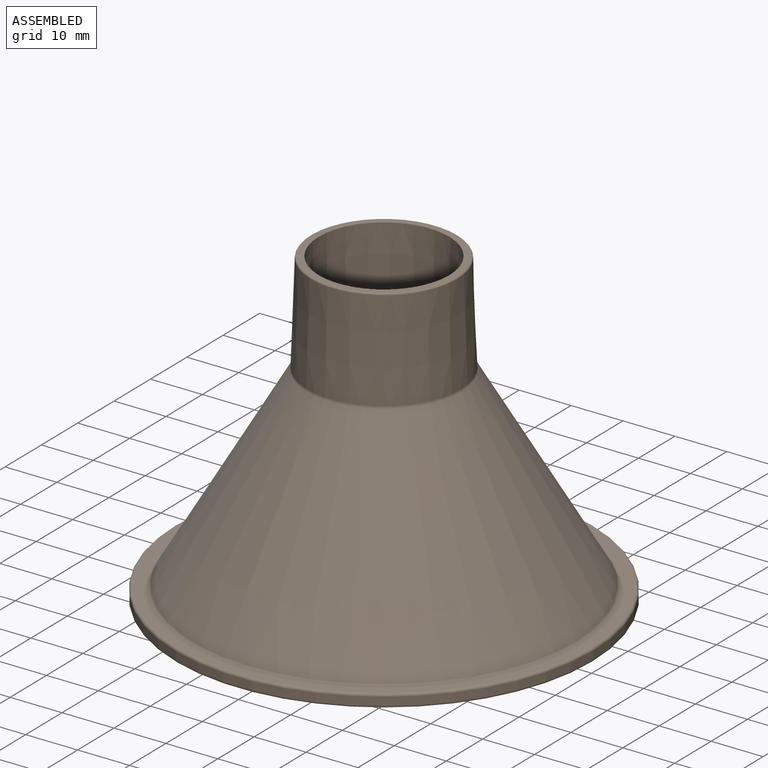
[diagram: assembled view]
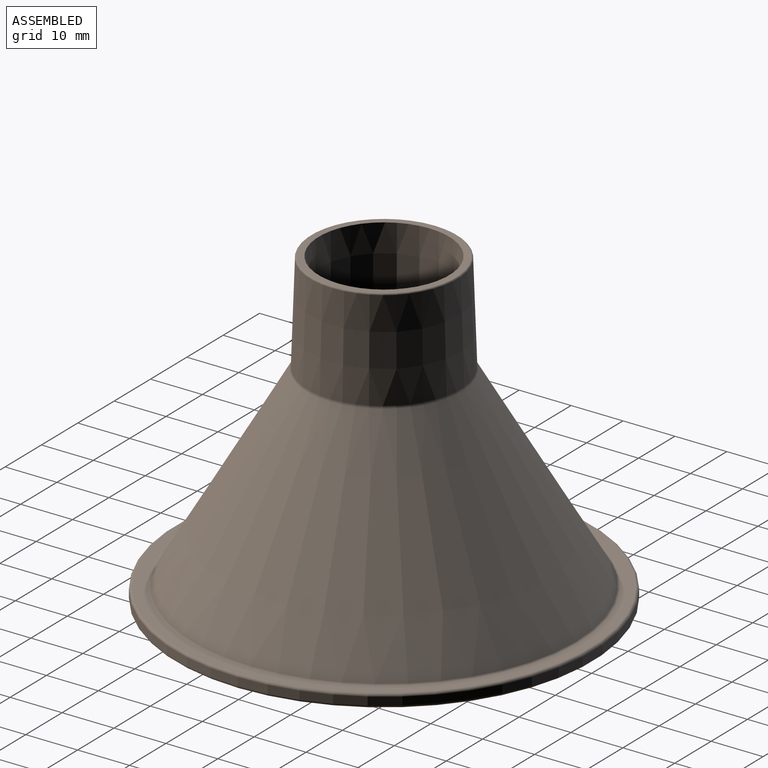
[diagram: assembled view, second angle]
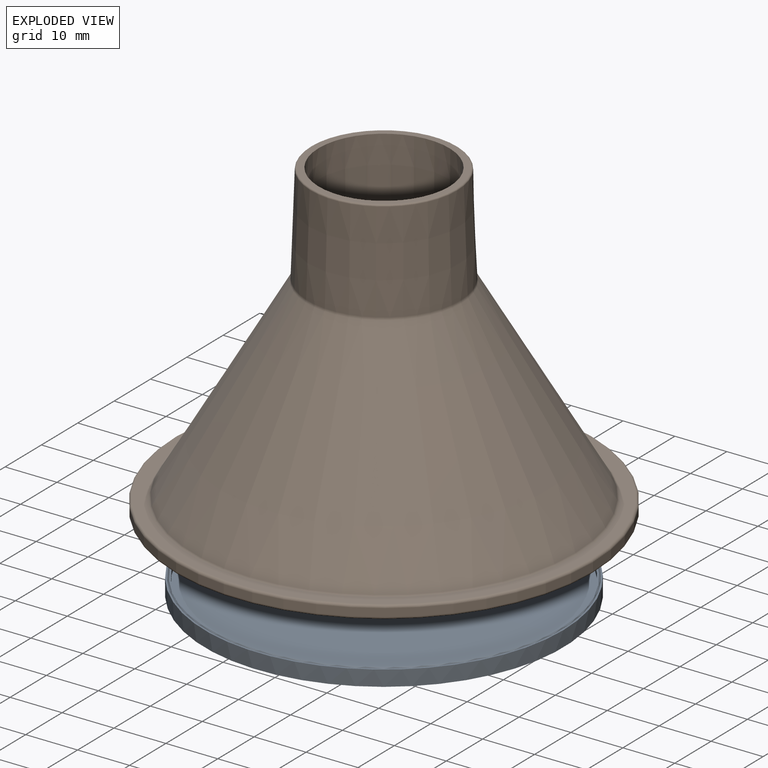
[diagram: exploded view]
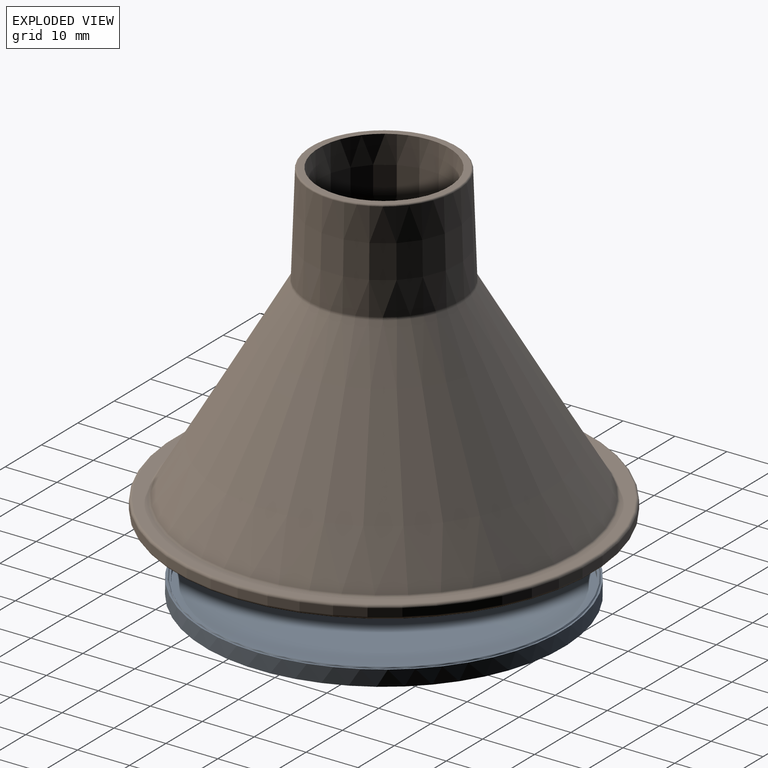
[diagram: exploded view, second angle]
ASSEMBLY  parts=2 mates=2
PART A: 10 faces, bbox 69.1x69.1x3.3 mm
  f0: plane 69.1x69.1mm, normal (0,0,1), area 64.8mm2, adj f2,f9
  f1: plane 67.9x67.9mm, normal (0,0,1), area 63.7mm2, adj f4,f8
  f2: cylinder r=34.55mm len=69.1mm, axis (0,0,-1), area 651.3mm2, adj f0,f3
  f3: plane 69.1x69.1mm, normal (0,0,-1), area 3750.1mm2, adj f2
  f4: cylinder r=33.65mm len=67.3mm, axis (0,0,-1), area 211.4mm2, adj f1,f5
  f5: plane 67.3x67.3mm, normal (0,0,1), area 208.3mm2, adj f4,f6
  f6: cone r=19.82mm half-angle=88.9deg, axis (0,0,1), area 3195.7mm2, adj f5,f7
  f7: plane 14x14mm, normal (0,0,1), area 153.9mm2, adj f6
  f8: cone r=34.02mm half-angle=30deg, axis (0,0,1), area 64.1mm2, adj f1,f9
  f9: cone r=34.17mm half-angle=30deg, axis (0,0,-1), area 64.4mm2, adj f0,f8
PART B: 26 faces, bbox 87.1x87.1x60 mm
  f0: cone r=25.87mm half-angle=30.4deg, axis (0,0,-1), area 7069mm2, adj f1,f25
  f1: torus R=15.74mm, axis (0,0,1), area 46mm2, adj f0,f2
  f2: cone r=14.41mm half-angle=2deg, axis (0,0,-1), area 1717.5mm2, adj f1,f3
  f3: torus R=13.78mm, axis (0,0,1), area 40.4mm2, adj f2,f4
  f4: plane 27.56x27.56mm, normal (0,0,1), area 100.8mm2, adj f3,f5
  f5: cone r=12.51mm half-angle=0.4deg, axis (0,0,1), area 1257.2mm2, adj f4,f6
  f6: plane 24.9x24.9mm, normal (0,0,1), area 137.3mm2, adj f5,f7
  f7: cone r=10.54mm half-angle=0.4deg, axis (0,0,1), area 99.4mm2, adj f6,f8
  f8: plane 24.43x24.43mm, normal (0,0,-1), area 119.7mm2, adj f7,f9
  f9: torus R=12.21mm, axis (0,0,-1), area 123.9mm2, adj f8,f10
  f10: cone r=13.23mm half-angle=2deg, axis (0,0,-1), area 101mm2, adj f9,f11
  f11: torus R=14.25mm, axis (0,0,-1), area 41.4mm2, adj f10,f12
  f12: cone r=22.81mm half-angle=30.4deg, axis (0,0,-1), area 5345.7mm2, adj f11,f13
  f13: torus R=30.51mm, axis (0,0,-1), area 208.7mm2, adj f12,f14
  f14: cone r=32.54mm half-angle=1deg, axis (0,0,-1), area 734.7mm2, adj f13,f15
  f15: plane 67.2x67.2mm, normal (0,0,-1), area 213.7mm2, adj f14,f16
  f16: cylinder r=33.6mm len=67.2mm, axis (0,0,-1), area 200.6mm2, adj f15,f17
  f17: plane 69.2x69.2mm, normal (0,0,-1), area 214.3mm2, adj f16,f18
  f18: cylinder r=34.6mm len=69.2mm, axis (0,0,-1), area 771.8mm2, adj f17,f19
  f19: torus R=35.1mm, axis (0,0,-1), area 171.6mm2, adj f18,f20
  f20: plane 79.5x79.5mm, normal (0,0,-1), area 1093.4mm2, adj f19,f21
  f21: torus R=39.75mm, axis (0,0,1), area 197.7mm2, adj f20,f22
  f22: cylinder r=40.25mm len=80.5mm, axis (0,0,1), area 379.3mm2, adj f21,f23
  f23: torus R=39.75mm, axis (0,0,1), area 197.7mm2, adj f22,f24
  f24: plane 79.5x79.5mm, normal (0,0,1), area 596.2mm2, adj f23,f25
  f25: torus R=37.29mm, axis (0,0,1), area 121.2mm2, adj f0,f24
PLACE A rot(axis=(0,0,1),0deg) t=(0,0,0.1)mm
PLACE B at identity fixed
MATE planar A.f2 <-> B.f0  axis (0,0,1) through (0,0,3.1)mm
MATE cylindrical A.f2 <-> B.f0  axis (0,0,1) through (0,0,2.6)mm
